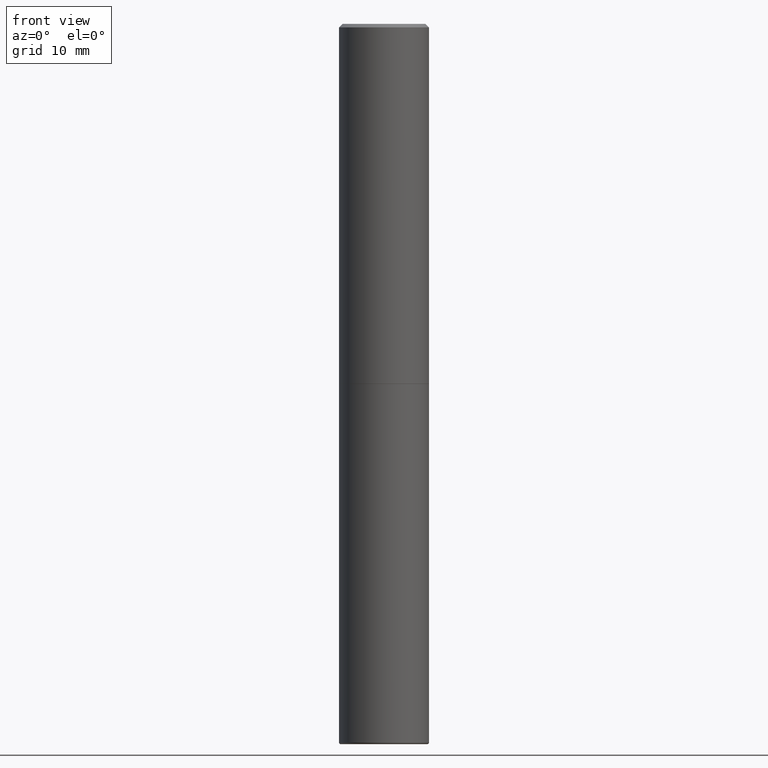
[diagram: clean part render]
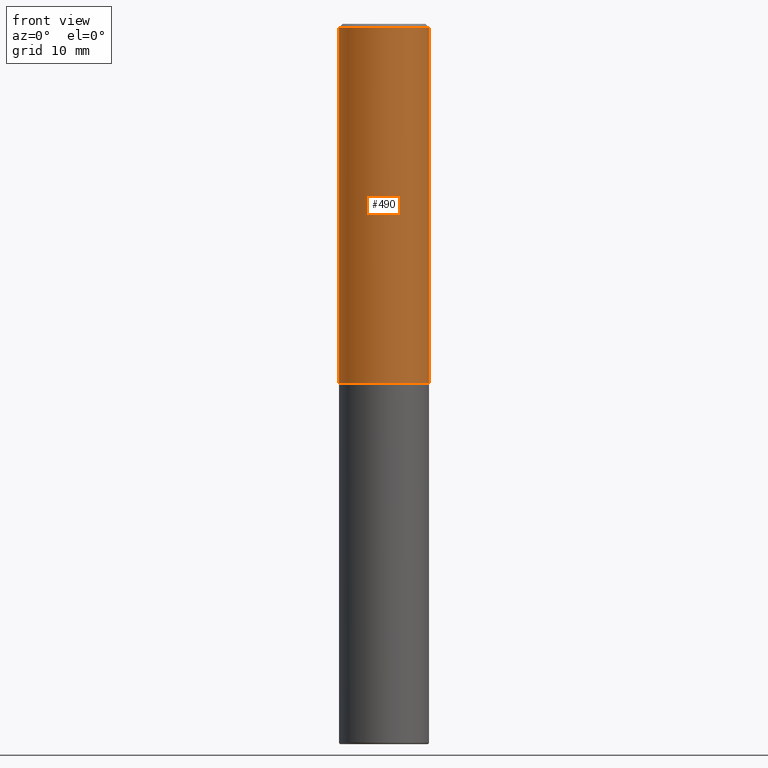
[diagram: same view with one face highlighted and labeled with its STEP entity id]
A machine part, front view. The second image highlights one B-rep face of the part: STEP entity #490.
In plain terms, the highlighted cylindrical surface (partial cylindrical patch) has radius 6.35 mm, axis along (-0, 0, 1).
Its self-contained STEP definition (entity closure, byte-faithful):
#22 = AXIS2_PLACEMENT_3D ( 'NONE', #458, #117, #202 ) ;
#30 = DIRECTION ( 'NONE',  ( -2.445468806185136877E-29, 3.491481338843145188E-15, 1.000000000000000000 ) ) ;
#35 = CYLINDRICAL_SURFACE ( 'NONE', #106, 0.2499999999999996669 ) ;
#40 = CARTESIAN_POINT ( 'NONE',  ( -0.2500000000000000000, -1.748293572161900530E-15, -1.998999999999999888 ) ) ;
#42 = VECTOR ( 'NONE', #368, 39.37007874015748143 ) ;
#71 = FACE_OUTER_BOUND ( 'NONE', #317, .T. ) ;
#106 = AXIS2_PLACEMENT_3D ( 'NONE', #312, #475, #274 ) ;
#109 = CARTESIAN_POINT ( 'NONE',  ( 0.2499999999999993061, -1.784954126219741456E-15, -0.02000000000000011838 ) ) ;
#114 = CARTESIAN_POINT ( 'NONE',  ( 4.888492143564087591E-29, -6.979471196347447369E-15, -1.998999999999999888 ) ) ;
#117 = DIRECTION ( 'NONE',  ( -2.445468806185136597E-29, 3.491481338843145583E-15, 1.000000000000000000 ) ) ;
#133 = EDGE_CURVE ( 'NONE', #321, #473, #288, .T. ) ;
#146 = CARTESIAN_POINT ( 'NONE',  ( 0.2499999999999999722, -8.725211865769014047E-15, -1.998999999999999888 ) ) ;
#147 = EDGE_CURVE ( 'NONE', #243, #467, #381, .T. ) ;
#179 = CARTESIAN_POINT ( 'NONE',  ( -0.2499999999999993061, 1.675911042644698449E-15, -0.02000000000000011838 ) ) ;
#185 = EDGE_CURVE ( 'NONE', #473, #467, #250, .T. ) ;
#194 = ORIENTED_EDGE ( 'NONE', *, *, #219, .F. ) ;
#202 = DIRECTION ( 'NONE',  ( 1.000000000000000000, -6.982962677686267499E-15, 0.000000000000000000 ) ) ;
#219 = EDGE_CURVE ( 'NONE', #321, #243, #290, .T. ) ;
#233 = ORIENTED_EDGE ( 'NONE', *, *, #147, .F. ) ;
#243 = VERTEX_POINT ( 'NONE', #179 ) ;
#250 = LINE ( 'NONE', #327, #386 ) ;
#270 = DIRECTION ( 'NONE',  ( -2.445468806185136597E-29, 3.491481338843145583E-15, 1.000000000000000000 ) ) ;
#274 = DIRECTION ( 'NONE',  ( 1.000000000000000000, -6.982962677686266711E-15, 4.876176775795935793E-29 ) ) ;
#281 = ORIENTED_EDGE ( 'NONE', *, *, #185, .T. ) ;
#288 = CIRCLE ( 'NONE', #295, 0.2499999999999999722 ) ;
#290 = LINE ( 'NONE', #334, #42 ) ;
#295 = AXIS2_PLACEMENT_3D ( 'NONE', #114, #270, #466 ) ;
#312 = CARTESIAN_POINT ( 'NONE',  ( 0.000000000000000000, 0.000000000000000000, 0.000000000000000000 ) ) ;
#317 = EDGE_LOOP ( 'NONE', ( #194, #433, #281, #233 ) ) ;
#321 = VERTEX_POINT ( 'NONE', #40 ) ;
#327 = CARTESIAN_POINT ( 'NONE',  ( 0.2499999999999996669, -1.745740669421564311E-15, 1.219044193948982267E-29 ) ) ;
#334 = CARTESIAN_POINT ( 'NONE',  ( -0.2499999999999996669, 1.776356839400248098E-15, -1.229733772563724764E-29 ) ) ;
#368 = DIRECTION ( 'NONE',  ( -2.445468806185136877E-29, 3.491481338843145188E-15, 1.000000000000000000 ) ) ;
#381 = CIRCLE ( 'NONE', #22, 0.2499999999999993061 ) ;
#386 = VECTOR ( 'NONE', #30, 39.37007874015748143 ) ;
#433 = ORIENTED_EDGE ( 'NONE', *, *, #133, .T. ) ;
#458 = CARTESIAN_POINT ( 'NONE',  ( 4.890937612370302936E-31, -6.982962677686332285E-17, -0.02000000000000011838 ) ) ;
#466 = DIRECTION ( 'NONE',  ( 1.000000000000000000, -6.982962677686267499E-15, 0.000000000000000000 ) ) ;
#467 = VERTEX_POINT ( 'NONE', #109 ) ;
#473 = VERTEX_POINT ( 'NONE', #146 ) ;
#475 = DIRECTION ( 'NONE',  ( -2.445468806185136597E-29, 3.491481338843145583E-15, 1.000000000000000000 ) ) ;
#490 = ADVANCED_FACE ( 'NONE', ( #71 ), #35, .T. ) ;